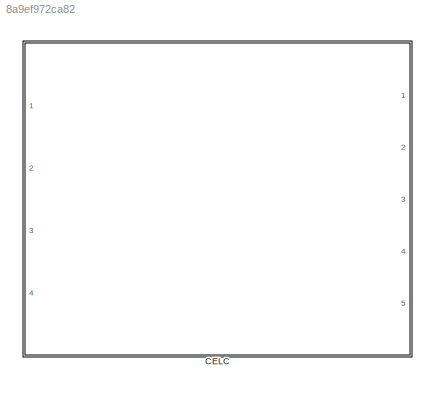
MODEL slx_8a9ef972ca82
KIND library
CONFIG AbsTol = auto
CONFIG EnableMultiTasking = on
CONFIG FixedStep = auto
CONFIG MaxStep = auto
CONFIG MinStep = auto
CONFIG RelTol = 1e-3
CONFIG SampleTimeConstraint = Unconstrained
CONFIG Solver = ode45
CONFIG SolverName = ode45
CONFIG StartTime = 0.0
CONFIG StopTime = 10.0
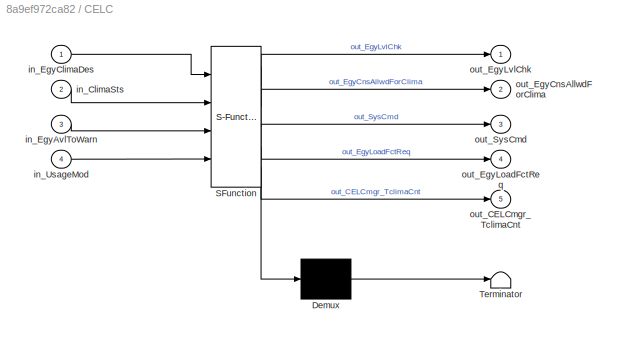
BLOCK [SubSystem] CELC
  ErrorFcn = Stateflow.Translate.translate
  PermitHierarchicalResolution = ExplicitOnly
  Ports = [4, 5]
  RequestExecContextInheritance = off
  SFBlockType = Chart
  TreatAsAtomicUnit = on
  Variant = off
BLOCK [Demux] CELC/ Demux 
  Outputs = 1
  Ports = [1, 1]
BLOCK [S-Function] CELC/ SFunction 
  EnableBusSupport = off
  FunctionName = sf_sfun
  Parameters = CELCmgr_EgyClimaAllwdFac,CELCmgr_EgyCnsAllwdForClimaMax,CELCmgr_TEgyChkTime_5min,CELCmgr_TclimaMax
  PortCounts = [4 6]
  Ports = [4, 6]
  SFcnIsStateOwnerBlock = off
  SFunctionDeploymentMode = off
  Tag = Stateflow S-Function CELCmgrLogicLib 21
BLOCK [Terminator] CELC/ Terminator 
BLOCK [Inport] CELC/in_ClimaSts
  IconDisplay = Port number
  Port = 2
BLOCK [Inport] CELC/in_EgyAvlToWarn
  IconDisplay = Port number
  Port = 3
BLOCK [Inport] CELC/in_EgyClimaDes
  IconDisplay = Port number
BLOCK [Inport] CELC/in_UsageMod
  IconDisplay = Port number
  Port = 4
BLOCK [Outport] CELC/out_CELCmgr_TclimaCnt
  IconDisplay = Port number
  Port = 5
BLOCK [Outport] CELC/out_EgyCnsAllwdForClima
  IconDisplay = Port number
  Port = 2
BLOCK [Outport] CELC/out_EgyLoadFctReq
  IconDisplay = Port number
  Port = 4
BLOCK [Outport] CELC/out_EgyLvlChk
  IconDisplay = Port number
BLOCK [Outport] CELC/out_SysCmd
  IconDisplay = Port number
  Port = 3
CHART CELC states=7 transitions=18
  STATE_LABEL 'CELC_ACTUATOR_OFF\nen,du:\nInactiveUsageMode();'
  STATE_LABEL 'InactiveUsageMode'
  STATE_LABEL '{out_CELCmgr_TclimaCnt = 0;\n/*Stop actuator work*/\nout_SysCmd = 0;\n/*Stop energy level check*/\nout_EgyLvlChk = 0;}'
  STATE_LABEL '/*Climate finished working*/\n[in_ClimaSts != 0]'
  STATE_LABEL '/*Inactive energy load usage mode*/\n{out_EgyLoadFctReq = 0;}'
  STATE_LABEL 'CELC_ACTUATOR_ON\nen,du:\n/*Start actuator working*/\nout_SysCmd = 1;'
  STATE_LABEL 'SystemEgyCalc'
  STATE_LABEL ' {out_EgyCnsAllwdForClima = in_EgyAvlToWarn * 12 * CELCmgr_EgyClimaAllwdFac;}'
  STATE_LABEL '[out_EgyCnsAllwdForClima > CELCmgr_EgyCnsAllwdForClimaMax]'
  STATE_LABEL '{out_EgyCnsAllwdForClima = CELCmgr_EgyCnsAllwdForClimaMax;}'
  STATE_LABEL 'CELC_EGY_CHECK\nen:\nout_CELCmgr_TclimaCnt++;\nen,du:\nout_EgyLvlChk =1;\n'
  STATE_LABEL 'CELC_SYS_EGY_CALC\nen,du:\n/*REQPROD_216022*/\nSystemEgyCalc();'
  STATE_LABEL 'CELC_ACTV_USG_MODE\nen,du:\n/*Disable energy level check*/\nout_EgyLvlChk = 0; \n/*Active energy load usage mode*/\nout_EgyLoadFctReq = 1;'
